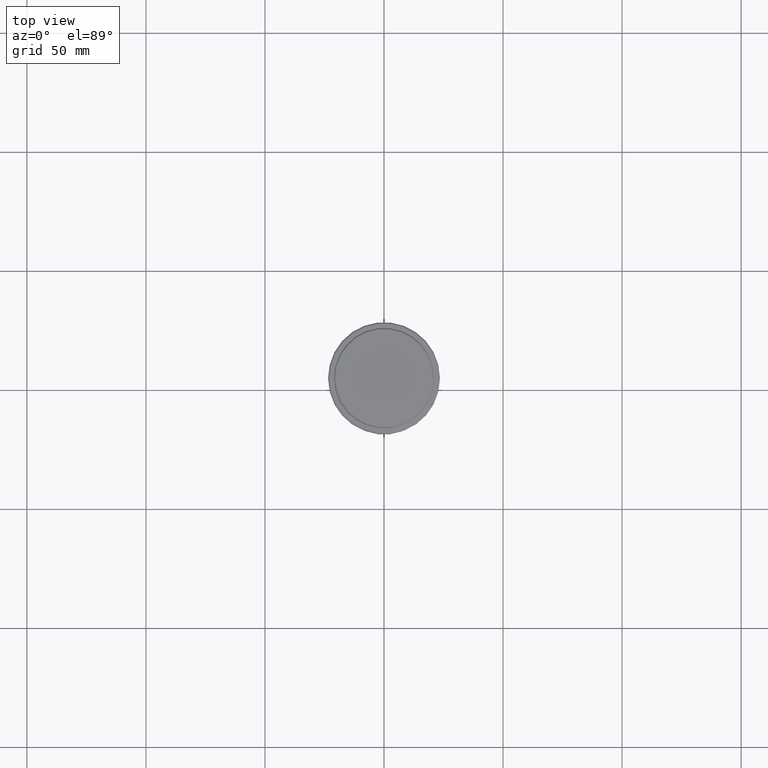
[diagram: clean part render]
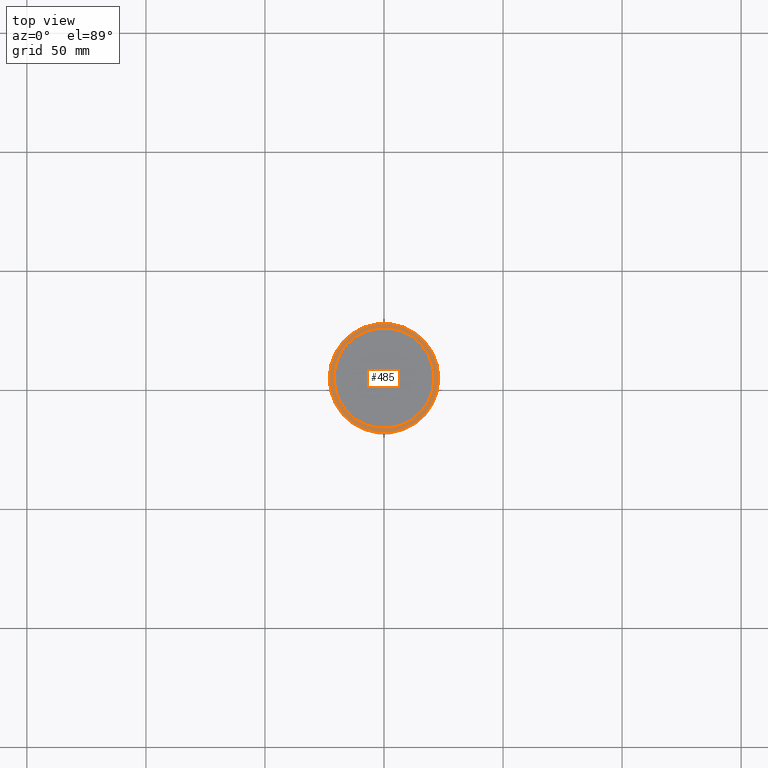
[diagram: same view with one face highlighted and labeled with its STEP entity id]
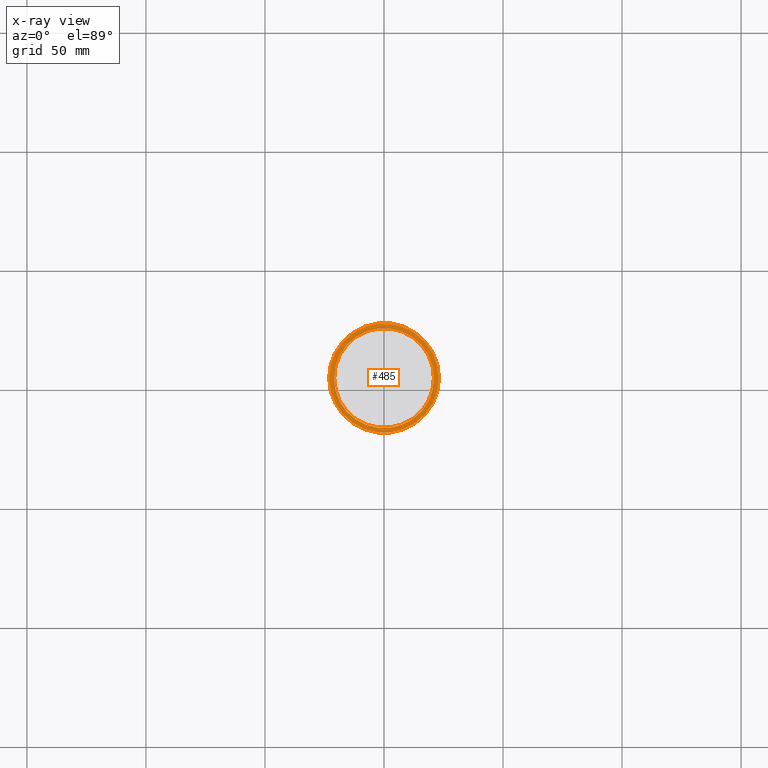
[diagram: x-ray of the same camera — body ghosted, the highlighted face saturated]
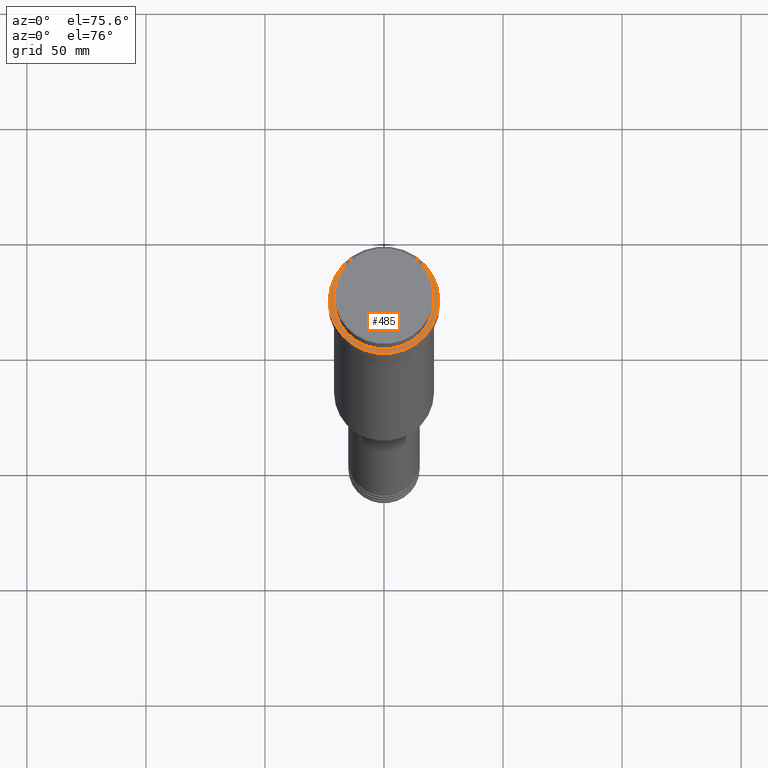
[diagram: same view with one face highlighted and labeled with its STEP entity id]
A machine part, top view. The second image highlights one B-rep face of the part: STEP entity #485.
The next image is the same camera in x-ray: the body ghosted, the highlighted face saturated — about 0% of this face is hidden behind the body in this view.
A second angle (auxiliary view) of the same face is appended — the face is thin or edge-on in the first view.
In plain terms, the highlighted planar face has unit normal (0, -0, 1).
Its self-contained STEP definition (entity closure, byte-faithful):
#61 = CARTESIAN_POINT ( 'NONE',  ( 23.00000000000005329, 2.847303808017599689E-15, -9.000000000000001776 ) ) ;
#78 = FACE_OUTER_BOUND ( 'NONE', #149, .T. ) ;
#86 = CARTESIAN_POINT ( 'NONE',  ( 20.99999999999999289, 0.000000000000000000, -9.000000000000001776 ) ) ;
#89 = CARTESIAN_POINT ( 'NONE',  ( 0.000000000000000000, 0.000000000000000000, -9.000000000000001776 ) ) ;
#136 = EDGE_CURVE ( 'NONE', #1177, #141, #195, .T. ) ;
#141 = VERTEX_POINT ( 'NONE', #411 ) ;
#149 = EDGE_LOOP ( 'NONE', ( #1296, #685 ) ) ;
#160 = PLANE ( 'NONE',  #730 ) ;
#195 = CIRCLE ( 'NONE', #1016, 20.99999999999999289 ) ;
#238 = DIRECTION ( 'NONE',  ( 1.000000000000000000, 0.000000000000000000, 0.000000000000000000 ) ) ;
#270 = EDGE_CURVE ( 'NONE', #141, #1177, #932, .T. ) ;
#358 = ORIENTED_EDGE ( 'NONE', *, *, #136, .T. ) ;
#411 = CARTESIAN_POINT ( 'NONE',  ( -20.99999999999999289, 2.571758278209440872E-15, -9.000000000000001776 ) ) ;
#481 = DIRECTION ( 'NONE',  ( 1.000000000000000000, 0.000000000000000000, 0.000000000000000000 ) ) ;
#485 = ADVANCED_FACE ( 'NONE', ( #78, #1051 ), #160, .T. ) ;
#504 = CARTESIAN_POINT ( 'NONE',  ( 0.000000000000000000, 20.49999999999999645, -9.000000000000001776 ) ) ;
#580 = CARTESIAN_POINT ( 'NONE',  ( 0.000000000000000000, 0.000000000000000000, -9.000000000000001776 ) ) ;
#685 = ORIENTED_EDGE ( 'NONE', *, *, #1022, .T. ) ;
#693 = VERTEX_POINT ( 'NONE', #1073 ) ;
#705 = CIRCLE ( 'NONE', #1045, 23.00000000000005329 ) ;
#730 = AXIS2_PLACEMENT_3D ( 'NONE', #504, #933, #481 ) ;
#804 = EDGE_LOOP ( 'NONE', ( #358, #1192 ) ) ;
#835 = EDGE_CURVE ( 'NONE', #693, #1362, #705, .T. ) ;
#883 = CARTESIAN_POINT ( 'NONE',  ( 0.000000000000000000, 0.000000000000000000, -9.000000000000001776 ) ) ;
#892 = CIRCLE ( 'NONE', #1305, 23.00000000000005329 ) ;
#893 = DIRECTION ( 'NONE',  ( 1.000000000000000000, 0.000000000000000000, 0.000000000000000000 ) ) ;
#932 = CIRCLE ( 'NONE', #1253, 20.99999999999999289 ) ;
#933 = DIRECTION ( 'NONE',  ( 0.000000000000000000, -0.000000000000000000, 1.000000000000000000 ) ) ;
#938 = CARTESIAN_POINT ( 'NONE',  ( 0.000000000000000000, 0.000000000000000000, -9.000000000000001776 ) ) ;
#1016 = AXIS2_PLACEMENT_3D ( 'NONE', #89, #1322, #1216 ) ;
#1022 = EDGE_CURVE ( 'NONE', #1362, #693, #892, .T. ) ;
#1045 = AXIS2_PLACEMENT_3D ( 'NONE', #883, #1353, #893 ) ;
#1051 = FACE_BOUND ( 'NONE', #804, .T. ) ;
#1073 = CARTESIAN_POINT ( 'NONE',  ( -23.00000000000005329, 0.000000000000000000, -9.000000000000001776 ) ) ;
#1131 = DIRECTION ( 'NONE',  ( 1.000000000000000000, 0.000000000000000000, 0.000000000000000000 ) ) ;
#1177 = VERTEX_POINT ( 'NONE', #86 ) ;
#1192 = ORIENTED_EDGE ( 'NONE', *, *, #270, .T. ) ;
#1216 = DIRECTION ( 'NONE',  ( 1.000000000000000000, 0.000000000000000000, 0.000000000000000000 ) ) ;
#1253 = AXIS2_PLACEMENT_3D ( 'NONE', #580, #1361, #238 ) ;
#1296 = ORIENTED_EDGE ( 'NONE', *, *, #835, .T. ) ;
#1305 = AXIS2_PLACEMENT_3D ( 'NONE', #938, #1385, #1131 ) ;
#1322 = DIRECTION ( 'NONE',  ( 0.000000000000000000, 0.000000000000000000, -1.000000000000000000 ) ) ;
#1353 = DIRECTION ( 'NONE',  ( -0.000000000000000000, -0.000000000000000000, 1.000000000000000000 ) ) ;
#1361 = DIRECTION ( 'NONE',  ( 0.000000000000000000, 0.000000000000000000, -1.000000000000000000 ) ) ;
#1362 = VERTEX_POINT ( 'NONE', #61 ) ;
#1385 = DIRECTION ( 'NONE',  ( -0.000000000000000000, -0.000000000000000000, 1.000000000000000000 ) ) ;